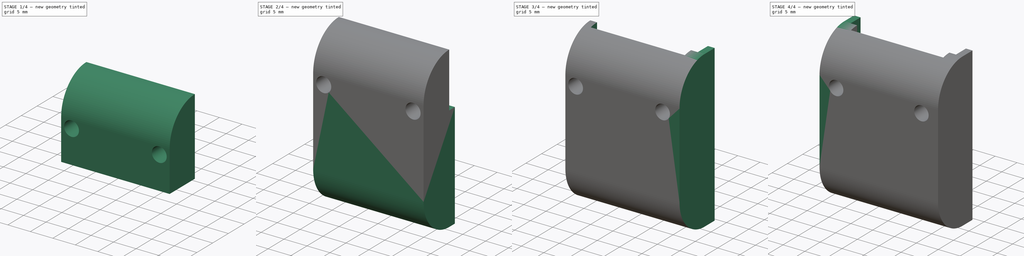
[diagram: build sequence overview — one tinted view per stage of 4, left to right]
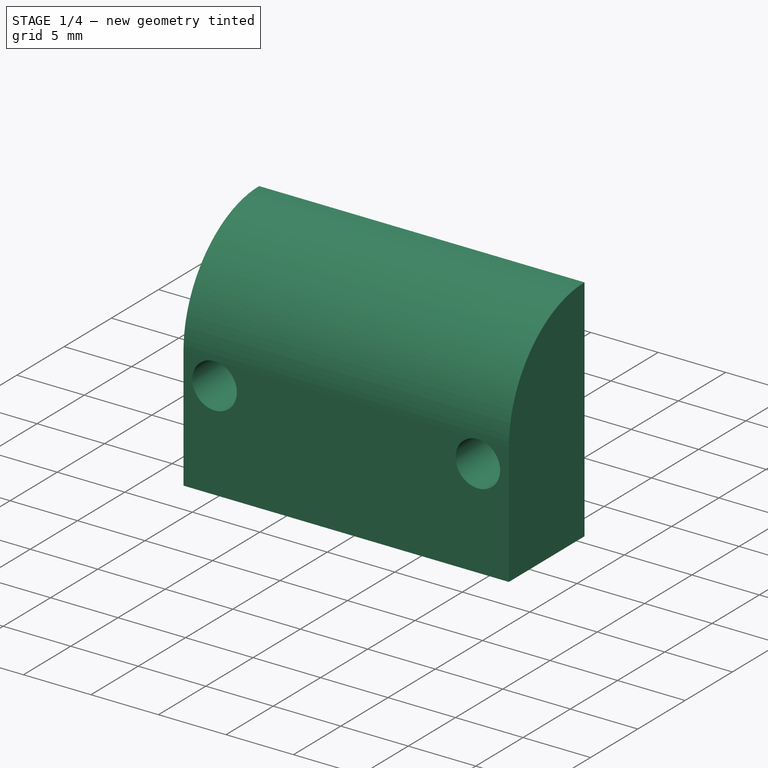
[diagram: stage 1 of 4 — iso view after this stage's code; geometry added in this stage tinted green]
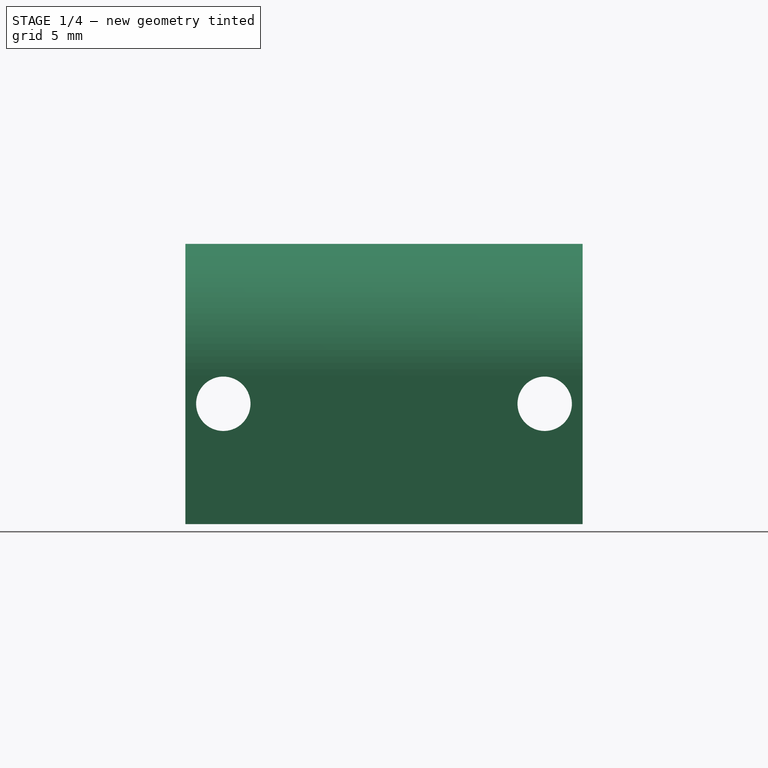
[diagram: stage 1 of 4 — front view after this stage's code; geometry added in this stage tinted green]
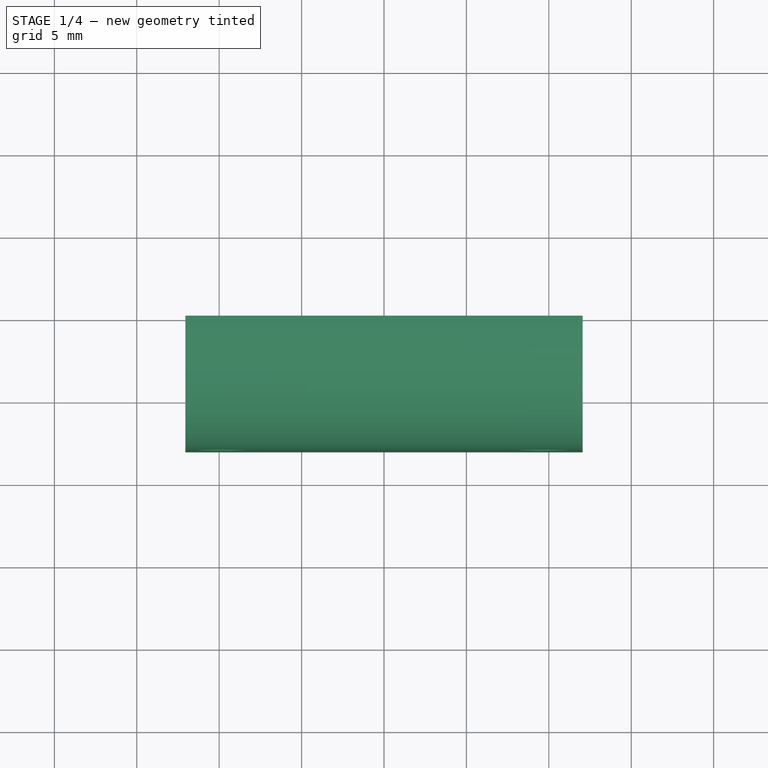
[diagram: stage 1 of 4 — top view after this stage's code; geometry added in this stage tinted green]
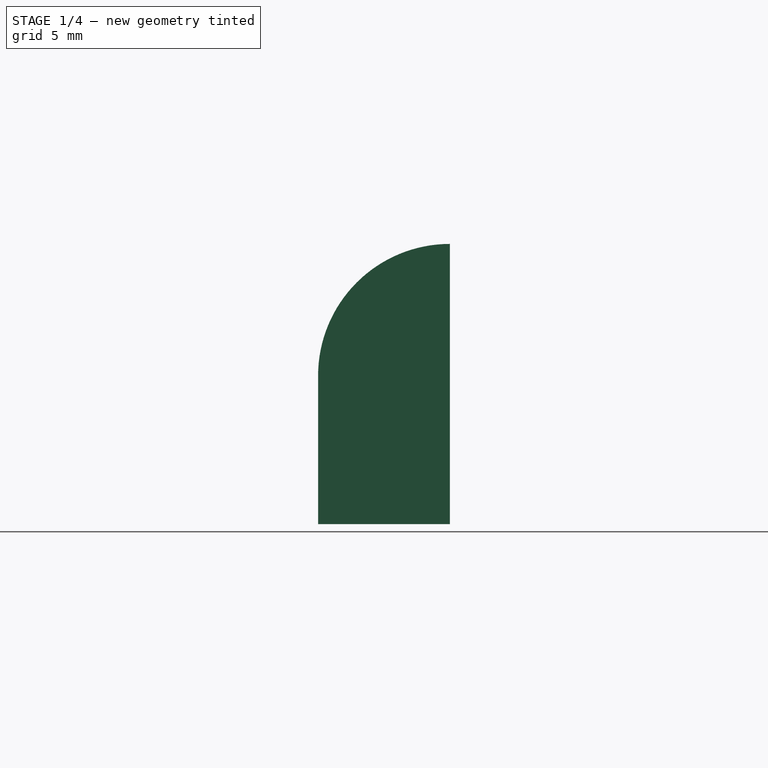
[diagram: stage 1 of 4 — right view after this stage's code; geometry added in this stage tinted green]
FCSTD DOCUMENT  (FreeCAD 1.0R39109 (Git))
Label: touch_sensor_prot
License: All rights reserved
LicenseURL: https://en.wikipedia.org/wiki/All_rights_reserved
objects: Sketcher::SketchObject×10, PartDesign::Pad×5, PartDesign::Pocket×4, PartDesign::Mirrored×1, PartDesign::Fillet×1, PartDesign::Body×1
note: 53 computed .brp shape members not serialized (recipe doc carries the construction recipe); baked Part::Feature solids carry a one-line shape summary decoded from their .brp

FEATURE [Sketcher::SketchObject] Sketch
  ArcFitTolerance = 1e-06
  AttachmentSupport = -> [XZ_Plane]
  FullyConstrained = true
  MakeInternals = false
  MapMode = 5
  Placement = pos=(0,0,0) rot=(1,0,0;1.5708rad)
  sketch-geometry (10):
    g0: LineSegment StartX=-12.05 StartY=6 StartZ=0 EndX=-12.05 EndY=-6 EndZ=0
    g1: LineSegment [constr] StartX=-12.05 StartY=-6 StartZ=0 EndX=12.05 EndY=-6 EndZ=0
    g2: LineSegment StartX=12.05 StartY=-6 StartZ=0 EndX=12.05 EndY=6 EndZ=0
    g3: LineSegment StartX=12.05 StartY=6 StartZ=0 EndX=-12.05 EndY=6 EndZ=0
    g4: GeomPoint [constr] X=0 Y=0 Z=0
    g5: LineSegment StartX=-12.05 StartY=-6 StartZ=0 EndX=-12.05 EndY=-11 EndZ=0
    g6: LineSegment StartX=-12.05 StartY=-11 StartZ=0 EndX=12.05 EndY=-11 EndZ=0
    g7: LineSegment StartX=12.05 StartY=-11 StartZ=0 EndX=12.05 EndY=-6 EndZ=0
    g8: Circle CenterX=-9.75 CenterY=-3.7 CenterZ=0 NormalX=0 NormalY=0 NormalZ=1 AngleXU=0 Radius=1.65
    g9: Circle CenterX=9.75 CenterY=-3.7 CenterZ=0 NormalX=0 NormalY=0 NormalZ=1 AngleXU=0 Radius=1.65
  constraints (25):
    c: Coincident(g0,g1)
    c: Coincident(g1,g2)
    c: Coincident(g2,g3)
    c: Coincident(g3,g0)
    c: Vertical(g0)
    c: Vertical(g2)
    c: Horizontal(g1)
    c: Horizontal(g3)
    c: Symmetric(g2,g0,g4)
    c: Coincident(g4,g-1)
    c: DistanceY(g0,g0) = 12
    c: DistanceX(g3,g3) = 24.1
    c: Coincident(g0,g5)
    c: Coincident(g5,g6)
    c: Horizontal(g6)
    c: Coincident(g6,g7)
    c: Coincident(g7,g1)
    c: Vertical(g7)
    c: Vertical(g5)
    c: DistanceY(g5,g5) = 5
    c: Symmetric(g9,g8,g-2)
    c: DistanceX(g8,g9) = 19.5
    c: DistanceY(g1,g9) = 2.3
    c: Equal(g9,g8)
    c: Radius(g8) = 1.65
FEATURE [PartDesign::Pad] Pad  label="BAsePad"
  Direction = (0,-1,2e-16)
  Length = 8
  Length2 = 10
  Placement = pos=(0,0,0) rot=(1,0,0;1.5708rad)
  Profile = -> Sketch
  ReferenceAxis = -> Sketch [N_Axis]
  Refine = true
  Suppressed = false
  Type = 0
FEATURE [Sketcher::SketchObject] Sketch001
  ArcFitTolerance = 1e-06
  AttachmentSupport = -> [Pad]
  FullyConstrained = true
  MakeInternals = false
  MapMode = 5
  Placement = pos=(0,-4.8e-15,-11) rot=(1,0,0;3.14159rad)
  sketch-geometry (4):
    g0: LineSegment StartX=-6 StartY=0 StartZ=0 EndX=-6 EndY=7 EndZ=0
    g1: LineSegment StartX=-6 StartY=7 StartZ=0 EndX=6 EndY=7 EndZ=0
    g2: LineSegment StartX=6 StartY=7 StartZ=0 EndX=6 EndY=0 EndZ=0
    g3: LineSegment StartX=6 StartY=0 StartZ=0 EndX=-6 EndY=0 EndZ=0
  constraints (11):
    c: PointOnObject(g0,g-1)
    c: Vertical(g0)
    c: Coincident(g0,g1)
    c: Coincident(g1,g2)
    c: PointOnObject(g2,g-1)
    c: Vertical(g2)
    c: Coincident(g2,g3)
    c: Coincident(g3,g0)
    c: Symmetric(g1,g0,g-2)
    c: DistanceY(g2,g2) = 7
    c: DistanceX(g0,g2) = 12
FEATURE [PartDesign::Pocket] Pocket  label="ScrewPocket"
  BaseFeature = -> Pad
  Direction = (0,0,1)
  Length = 10
  Length2 = 5
  Placement = pos=(0,0,0) rot=(1,0,0;1.5708rad)
  Profile = -> Sketch001
  ReferenceAxis = -> Sketch001 [N_Axis]
  Refine = true
  Suppressed = false
  Type = 0
FEATURE [Sketcher::SketchObject] Sketch002
  ArcFitTolerance = 1e-06
  AttachmentSupport = -> [Pocket]
  ExternalGeometry = -> [Pocket]
  FullyConstrained = true
  MakeInternals = false
  MapMode = 5
  Placement = pos=(0,-6e-16,0) rot=(-1,0,0;1.5708rad)
  sketch-geometry (4):
    g0: LineSegment StartX=-12.05 StartY=-6 StartZ=0 EndX=12.05 EndY=-6 EndZ=0
    g1: LineSegment StartX=12.05 StartY=-6 StartZ=0 EndX=12.05 EndY=-1 EndZ=0
    g2: LineSegment StartX=12.05 StartY=-1 StartZ=0 EndX=-12.05 EndY=-1 EndZ=0
    g3: LineSegment StartX=-12.05 StartY=-1 StartZ=0 EndX=-12.05 EndY=-6 EndZ=0
  constraints (10):
    c: Coincident(g0,g1)
    c: Coincident(g1,g2)
    c: Coincident(g2,g3)
    c: Coincident(g3,g0)
    c: Horizontal(g2)
    c: Vertical(g1)
    c: Vertical(g3)
    c: Coincident(g0,g-3)
    c: Coincident(g-3,g0)
    c: DistanceY(g1,g1) = 5
FEATURE [Sketcher::SketchObject] Sketch003
  ArcFitTolerance = 1e-06
  AttachmentSupport = -> [Pocket]
  ExternalGeometry = -> [Pocket]
  FullyConstrained = false
  MakeInternals = false
  MapMode = 5
  Placement = pos=(-12.05,0,0) rot=(0.707107,0,-0.707107;3.14159rad)
  sketch-geometry (3):
    g0: ArcOfCircle CenterX=2 CenterY=1.4e-15 CenterZ=0 NormalX=0 NormalY=0 NormalZ=1 AngleXU=0 Radius=8 StartAngle=1.5708 EndAngle=3.14159
    g1: LineSegment StartX=-6 StartY=-1.2e-15 StartZ=0 EndX=-6 EndY=8 EndZ=0
    g2: LineSegment StartX=-6 StartY=8 StartZ=0 EndX=2 EndY=8 EndZ=0
  constraints (6):
    c: Tangent(g0,g-3) = 1.5708
    c: Coincident(g0,g1)
    c: Coincident(g1,g2)
    c: Coincident(g2,g0)
    c: Horizontal(g2)
    c: Tangent(g0,g-4) = 1.5708
FEATURE [PartDesign::Pocket] Pocket001  label="CurvePocket"
  BaseFeature = -> Pocket
  Direction = (1,0,2e-16)
  Length = 5
  Length2 = 5
  Placement = pos=(0,0,0) rot=(1,0,0;1.5708rad)
  Profile = -> Sketch003
  ReferenceAxis = -> Sketch003 [N_Axis]
  Refine = true
  Suppressed = false
  Type = 1
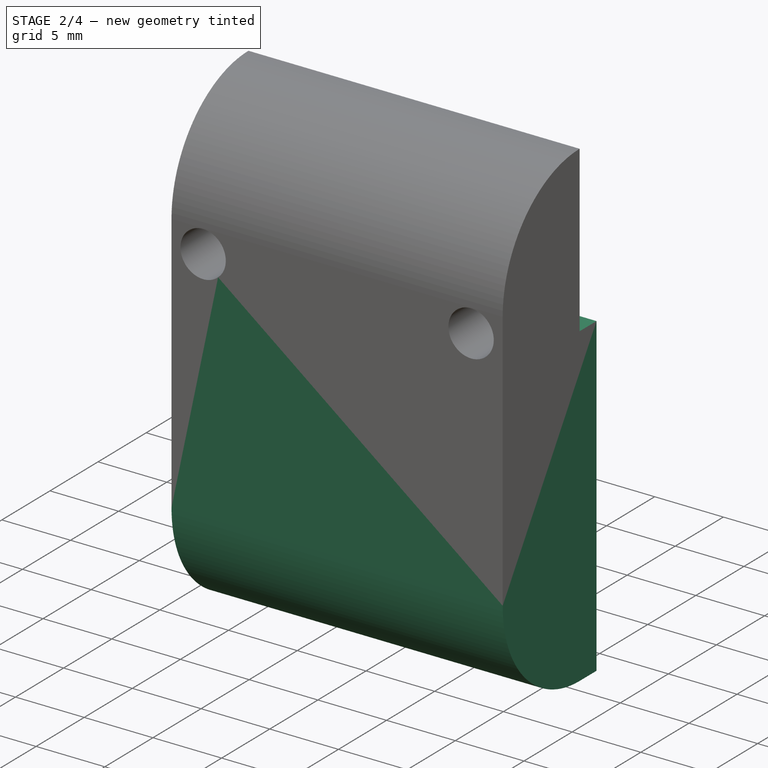
[diagram: stage 2 of 4 — iso view after this stage's code; geometry added in this stage tinted green]
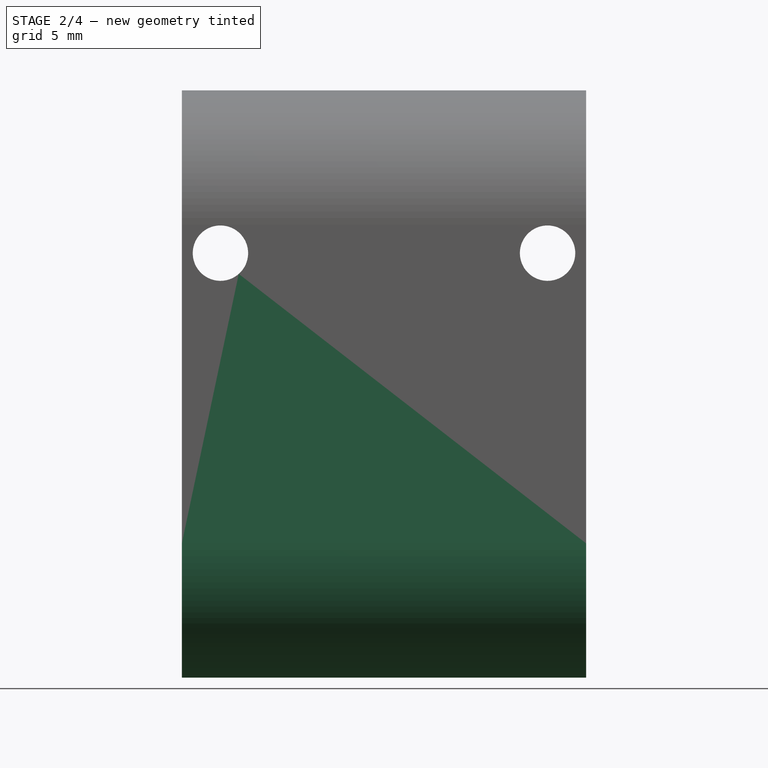
[diagram: stage 2 of 4 — front view after this stage's code; geometry added in this stage tinted green]
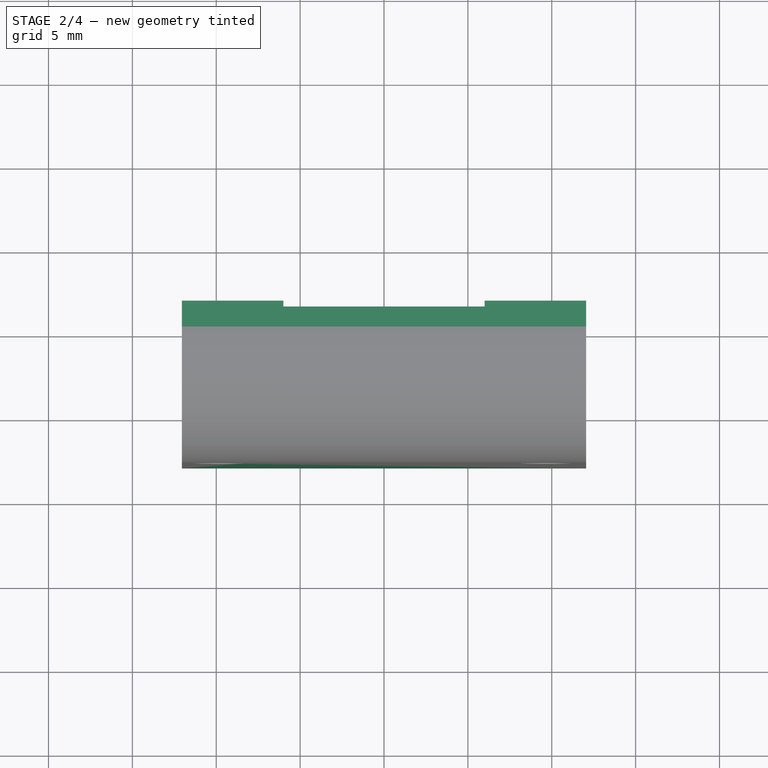
[diagram: stage 2 of 4 — top view after this stage's code; geometry added in this stage tinted green]
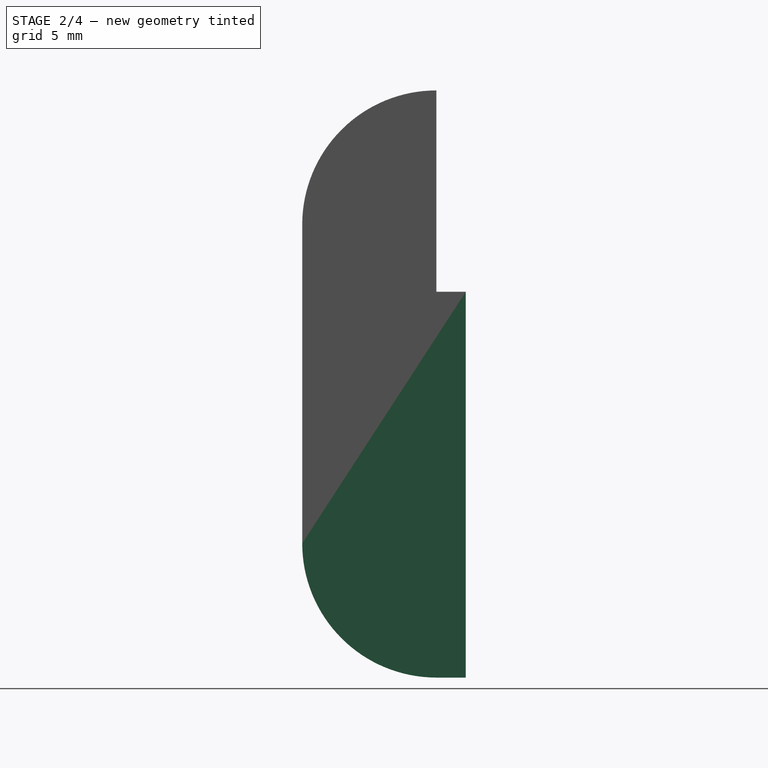
[diagram: stage 2 of 4 — right view after this stage's code; geometry added in this stage tinted green]
FEATURE [Sketcher::SketchObject] Sketch004
  ArcFitTolerance = 1e-06
  AttachmentSupport = -> [Pocket001]
  ExternalGeometry = -> [Pocket001]
  FullyConstrained = true
  MakeInternals = false
  MapMode = 5
  Placement = pos=(-12.05,0,0) rot=(0.707107,0,-0.707107;3.14159rad)
  sketch-geometry (4):
    g0: LineSegment StartX=11 StartY=8 StartZ=0 EndX=21 EndY=8 EndZ=0
    g1: ArcOfCircle CenterX=21 CenterY=0 CenterZ=0 NormalX=0 NormalY=0 NormalZ=1 AngleXU=0 Radius=8 StartAngle=0 EndAngle=1.5708
    g2: LineSegment StartX=29 StartY=0 StartZ=0 EndX=11 EndY=2.7e-15 EndZ=0
    g3: LineSegment StartX=11 StartY=2.7e-15 StartZ=0 EndX=11 EndY=8 EndZ=0
  constraints (10):
    c: Coincident(g-3,g0)
    c: Horizontal(g0)
    c: Tangent(g0,g1) = 1.5708
    c: Coincident(g1,g2)
    c: DistanceX(g0,g0) = 10
    c: PointOnObject(g1,g-1)
    c: Coincident(g2,g-3)
    c: Coincident(g2,g3)
    c: Coincident(g3,g0)
    c: PointOnObject(g1,g-1)
FEATURE [PartDesign::Pad] Pad001  label="ExtensionPad"
  BaseFeature = -> Pocket001
  Direction = (-1,0,-2e-16)
  Length = 10
  Length2 = 10
  Placement = pos=(0,0,0) rot=(1,0,0;1.5708rad)
  Profile = -> Sketch004
  ReferenceAxis = -> Sketch004 [N_Axis]
  Refine = true
  Reversed = true
  Suppressed = false
  Type = 3
  UpToFace = -> Pocket001 [Face6]
FEATURE [Sketcher::SketchObject] Sketch005
  ArcFitTolerance = 1e-06
  AttachmentSupport = -> [Pad001]
  ExternalGeometry = -> [Pad001]
  FullyConstrained = true
  MakeInternals = false
  MapMode = 5
  Placement = pos=(-6,0,0) rot=(0.707107,0,0.707107;3.14159rad)
  sketch-geometry (4):
    g0: LineSegment StartX=-11 StartY=7 StartZ=0 EndX=-19 EndY=7 EndZ=0
    g1: ArcOfCircle CenterX=-19 CenterY=0 CenterZ=0 NormalX=0 NormalY=0 NormalZ=1 AngleXU=0 Radius=7 StartAngle=1.5708 EndAngle=3.14159
    g2: LineSegment StartX=-26 StartY=0 StartZ=0 EndX=-11 EndY=0 EndZ=0
    g3: LineSegment StartX=-11 StartY=0 StartZ=0 EndX=-11 EndY=7 EndZ=0
  constraints (11):
    c: Coincident(g-3,g0)
    c: Horizontal(g0)
    c: Tangent(g0,g1) = -1.5708
    c: PointOnObject(g1,g-1)
    c: Coincident(g1,g2)
    c: Coincident(g2,g3)
    c: Coincident(g3,g0)
    c: Vertical(g3)
    c: Horizontal(g2)
    c: DistanceX(g0,g0) = 8
    c: Horizontal(g1,g1)
FEATURE [PartDesign::Pocket] Pocket002  label="EmptyPocket"
  BaseFeature = -> Pad001
  Direction = (-1,0,2e-16)
  Length = 12
  Length2 = 5
  Placement = pos=(0,0,0) rot=(1,0,0;1.5708rad)
  Profile = -> Sketch005
  ReferenceAxis = -> Sketch005 [N_Axis]
  Refine = true
  Reversed = true
  Suppressed = false
  Type = 0
FEATURE [Sketcher::SketchObject] Sketch006
  ArcFitTolerance = 1e-06
  AttachmentSupport = -> [Pocket002]
  ExternalGeometry = -> [Pocket002]
  FullyConstrained = true
  MakeInternals = false
  MapMode = 5
  Placement = pos=(0,1e-16,0) rot=(-1,0,0;1.5708rad)
  sketch-geometry (8):
    g0: LineSegment StartX=-12.05 StartY=6 StartZ=0 EndX=-12.05 EndY=29 EndZ=0
    g1: LineSegment StartX=-12.05 StartY=29 StartZ=0 EndX=12.05 EndY=29 EndZ=0
    g2: LineSegment StartX=12.05 StartY=29 StartZ=0 EndX=12.05 EndY=6 EndZ=0
    g3: LineSegment StartX=12.05 StartY=6 StartZ=0 EndX=6 EndY=6 EndZ=0
    g4: LineSegment StartX=6 StartY=6 StartZ=0 EndX=6 EndY=26 EndZ=0
    g5: LineSegment StartX=6 StartY=26 StartZ=0 EndX=-6 EndY=26 EndZ=0
    g6: LineSegment StartX=-6 StartY=26 StartZ=0 EndX=-6 EndY=6 EndZ=0
    g7: LineSegment StartX=-6 StartY=6 StartZ=0 EndX=-12.05 EndY=6 EndZ=0
  constraints (20):
    c: PointOnObject(g0,g-5)
    c: Coincident(g0,g-7)
    c: Coincident(g0,g1)
    c: Coincident(g1,g-7)
    c: Coincident(g1,g2)
    c: PointOnObject(g2,g-6)
    c: Coincident(g2,g3)
    c: PointOnObject(g3,g-9)
    c: Horizontal(g3)
    c: Coincident(g3,g4)
    c: Coincident(g4,g-10)
    c: Coincident(g4,g5)
    c: Coincident(g5,g-10)
    c: Coincident(g5,g6)
    c: PointOnObject(g6,g-8)
    c: Coincident(g6,g7)
    c: Coincident(g7,g0)
    c: Horizontal(g7)
    c: Horizontal(g3,g6)
    c: DistanceY(g-4,g0) = 2.3
FEATURE [PartDesign::Pad] Pad002  label="LevelPad"
  BaseFeature = -> Pocket002
  Direction = (0,1,2e-16)
  Length = 1.75
  Length2 = 10
  Placement = pos=(0,0,0) rot=(1,0,0;1.5708rad)
  Profile = -> Sketch006
  ReferenceAxis = -> Sketch006 [N_Axis]
  Refine = true
  Suppressed = false
  Type = 0
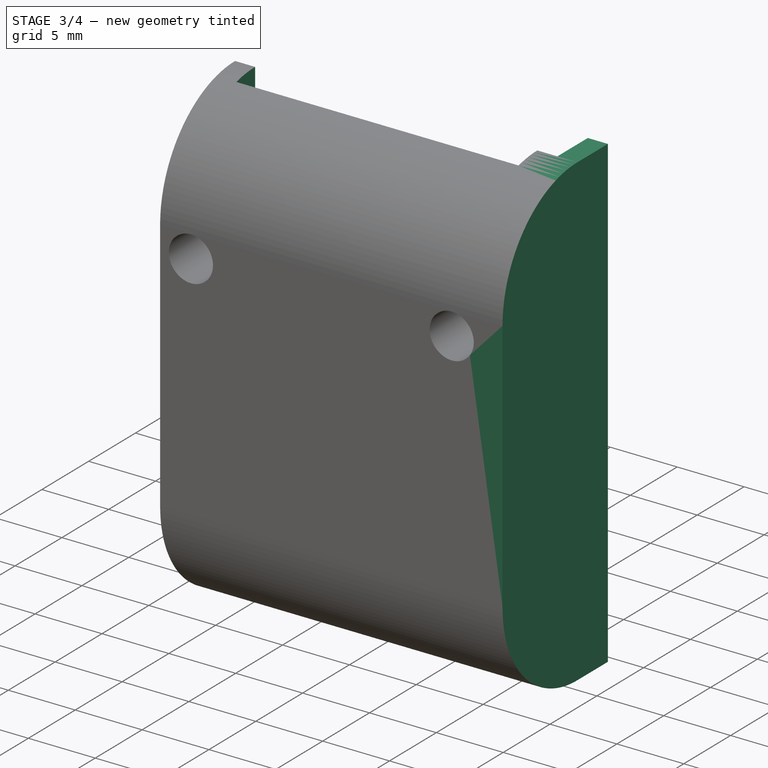
[diagram: stage 3 of 4 — iso view after this stage's code; geometry added in this stage tinted green]
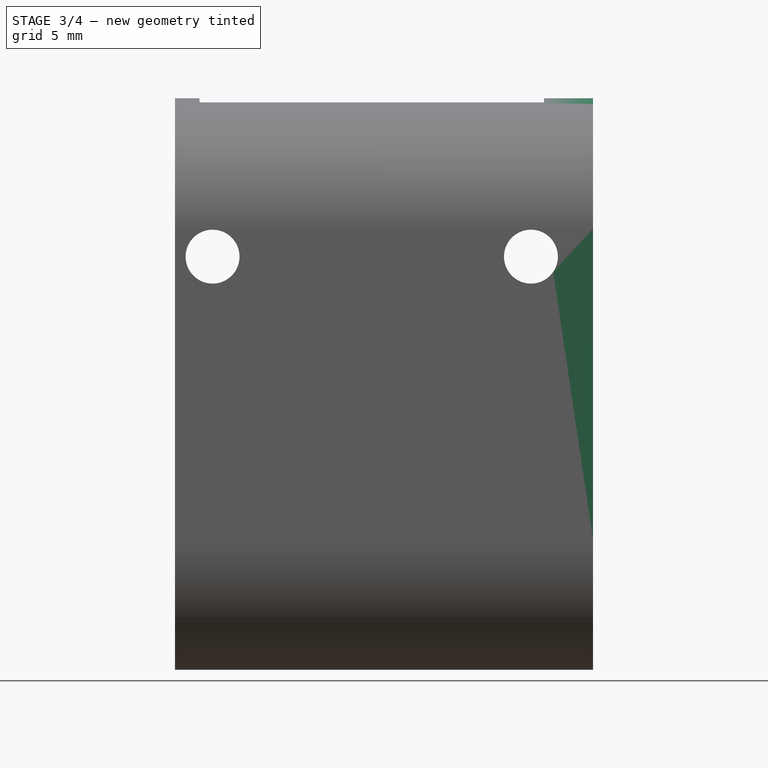
[diagram: stage 3 of 4 — front view after this stage's code; geometry added in this stage tinted green]
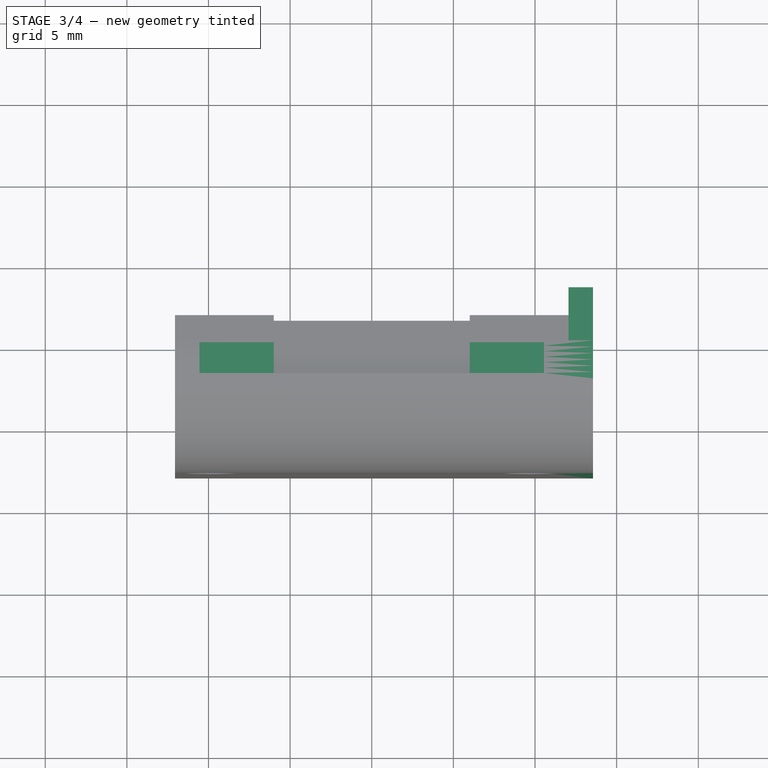
[diagram: stage 3 of 4 — top view after this stage's code; geometry added in this stage tinted green]
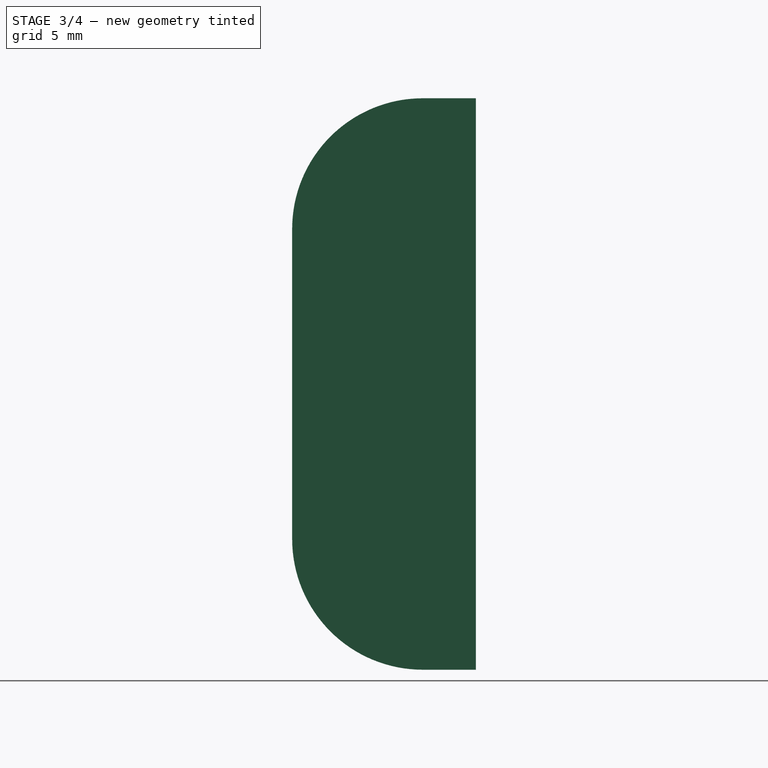
[diagram: stage 3 of 4 — right view after this stage's code; geometry added in this stage tinted green]
FEATURE [Sketcher::SketchObject] Sketch007
  ArcFitTolerance = 1e-06
  AttachmentSupport = -> [Pad002]
  ExternalGeometry = -> [Pad002,Sketch002]
  FullyConstrained = true
  MakeInternals = false
  MapMode = 5
  Placement = pos=(0,1e-16,0) rot=(-1,0,0;1.5708rad)
  sketch-geometry (6):
    g0: LineSegment StartX=-6 StartY=1 StartZ=0 EndX=-10.55 EndY=0.999989 EndZ=0
    g1: LineSegment StartX=-10.55 StartY=0.999989 StartZ=0 EndX=-10.55 EndY=-6 EndZ=0
    g2: LineSegment StartX=-10.55 StartY=-6 StartZ=0 EndX=10.55 EndY=-6 EndZ=0
    g3: LineSegment StartX=10.55 StartY=-6 StartZ=0 EndX=10.55 EndY=1 EndZ=0
    g4: LineSegment StartX=10.55 StartY=1 StartZ=0 EndX=6 EndY=1 EndZ=0
    g5: LineSegment StartX=-6 StartY=1 StartZ=0 EndX=6 EndY=1 EndZ=0
  constraints (15):
    c: Coincident(g-3,g0)
    c: Coincident(g0,g1)
    c: Vertical(g1)
    c: Coincident(g1,g2)
    c: Coincident(g2,g3)
    c: Coincident(g3,g4)
    c: Coincident(g4,g-3)
    c: Vertical(g3)
    c: Symmetric(g2,g1,g-2)
    c: Equal(g4,g0)
    c: DistanceX(g-4,g1) = 1.5
    c: Horizontal(g4)
    c: Coincident(g5,g0)
    c: Coincident(g5,g4)
    c: Horizontal(g1,g-4)
FEATURE [PartDesign::Pocket] Pocket003  label="AdditionalSpacePocket"
  BaseFeature = -> Pad002
  Direction = (0,-1,-2e-16)
  Length = 2
  Length2 = 5
  Placement = pos=(0,0,0) rot=(1,0,0;1.5708rad)
  Profile = -> Sketch007
  ReferenceAxis = -> Sketch007 [N_Axis]
  Refine = true
  Suppressed = false
  Type = 0
FEATURE [Sketcher::SketchObject] Sketch008
  ArcFitTolerance = 1e-06
  AttachmentSupport = -> [Pocket003]
  ExternalGeometry = -> [Pocket003]
  FullyConstrained = true
  MakeInternals = false
  MapMode = 5
  Placement = pos=(12.05,5.4e-15,-3.1e-15) rot=(0.707107,0,0.707107;3.14159rad)
  sketch-geometry (6):
    g0: LineSegment StartX=-29 StartY=1.08e-14 StartZ=0 EndX=-29 EndY=-3.25 EndZ=0
    g1: LineSegment StartX=-29 StartY=-3.25 StartZ=0 EndX=6 EndY=-3.25 EndZ=0
    g2: LineSegment StartX=6 StartY=-3.25 StartZ=0 EndX=6 EndY=-4e-16 EndZ=0
    g3: ArcOfCircle CenterX=-2 CenterY=-4.75e-14 CenterZ=0 NormalX=0 NormalY=0 NormalZ=1 AngleXU=0 Radius=8 StartAngle=5.9e-15 EndAngle=1.5708
    g4: LineSegment StartX=-2 StartY=8 StartZ=0 EndX=-21 EndY=8 EndZ=0
    g5: ArcOfCircle CenterX=-21 CenterY=6.31e-14 CenterZ=0 NormalX=0 NormalY=0 NormalZ=1 AngleXU=0 Radius=8 StartAngle=1.5708 EndAngle=3.14159
  constraints (13):
    c: Vertical(g0)
    c: Coincident(g0,g1)
    c: Horizontal(g1)
    c: Coincident(g1,g2)
    c: Coincident(g2,g-5)
    c: Tangent(g2,g3) = -1.5708
    c: Coincident(g4,g-4)
    c: Tangent(g4,g5) = -1.5708
    c: Coincident(g5,g0)
    c: Tangent(g3,g4) = -1.5708
    c: Coincident(g3,g-5)
    c: Coincident(g0,g-3)
    c: DistanceY(g0,g-6) = 1.5
FEATURE [PartDesign::Pad] Pad003  label="LateralPad"
  BaseFeature = -> Pocket003
  Direction = (1,0,-2e-16)
  Length = 1.5
  Length2 = 10
  Placement = pos=(0,0,0) rot=(1,0,0;1.5708rad)
  Profile = -> Sketch008
  ReferenceAxis = -> Sketch008 [N_Axis]
  Refine = true
  Suppressed = false
  Type = 0
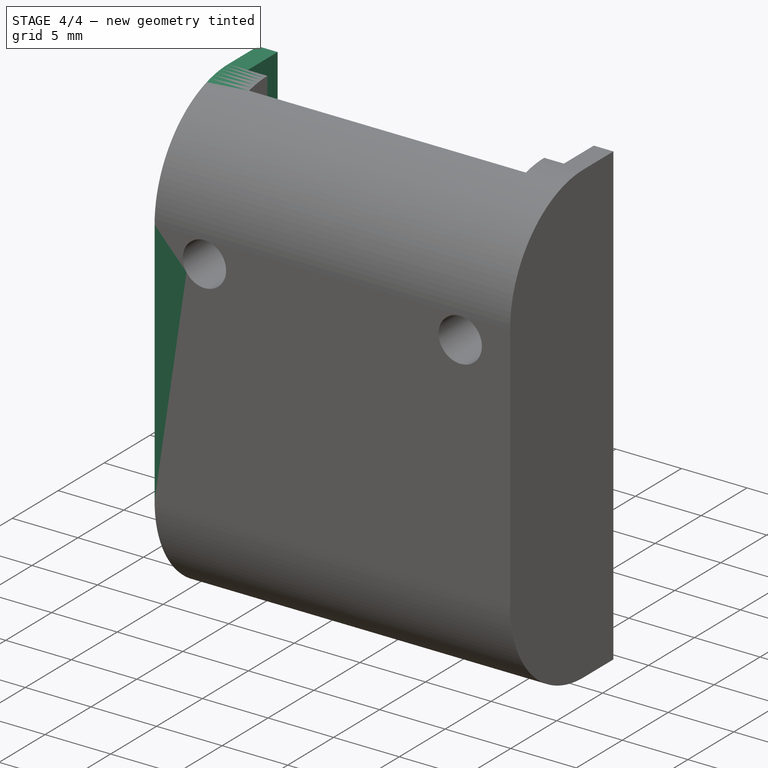
[diagram: stage 4 of 4 — iso view after this stage's code; geometry added in this stage tinted green]
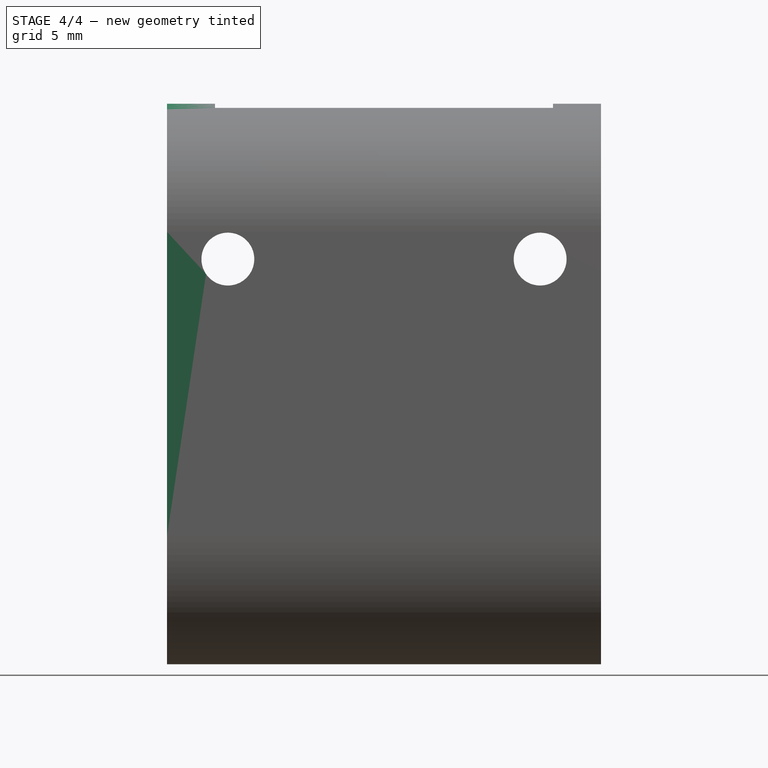
[diagram: stage 4 of 4 — front view after this stage's code; geometry added in this stage tinted green]
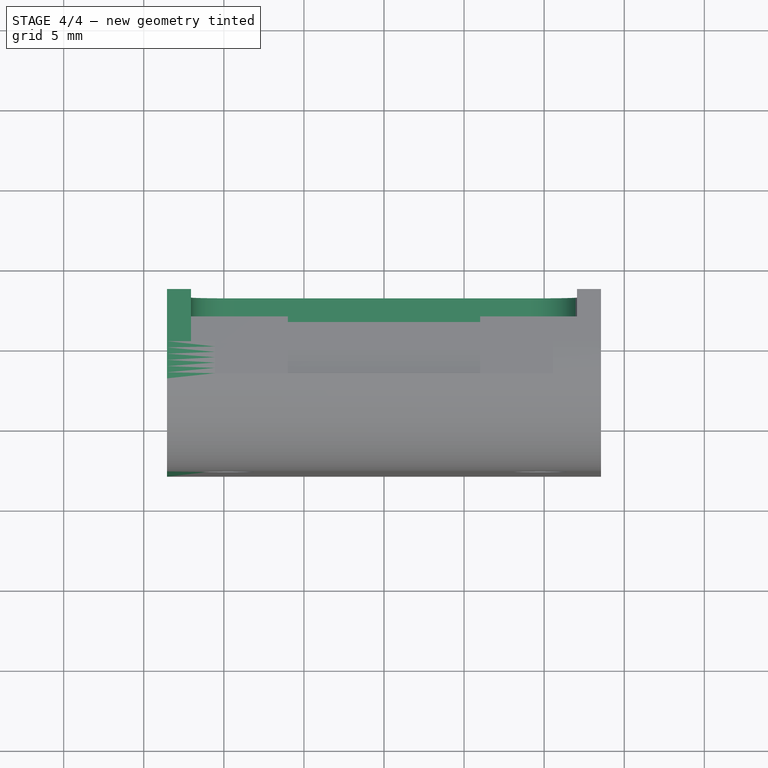
[diagram: stage 4 of 4 — top view after this stage's code; geometry added in this stage tinted green]
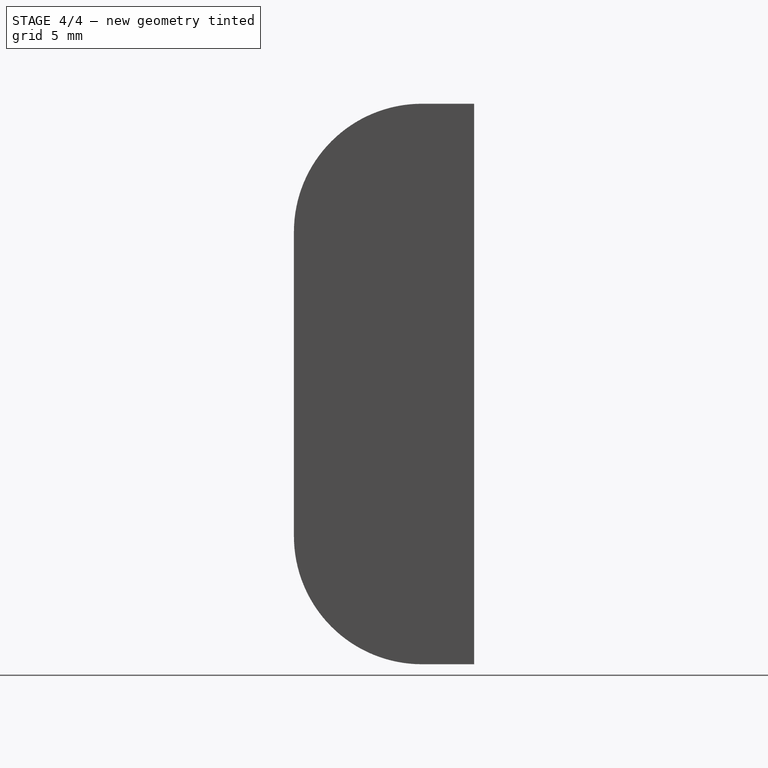
[diagram: stage 4 of 4 — right view after this stage's code; geometry added in this stage tinted green]
FEATURE [PartDesign::Mirrored] Mirrored  label="LateralPadMirror"
  BaseFeature = -> Pad003
  MirrorPlane = -> YZ_Plane
  Originals = -> [Pad003]
  Placement = pos=(0,0,0) rot=(1,0,0;1.5708rad)
  Refine = true
  Suppressed = false
  TransformMode = 0
FEATURE [Sketcher::SketchObject] Sketch009
  ArcFitTolerance = 1e-06
  AttachmentSupport = -> [Mirrored]
  ExternalGeometry = -> [Mirrored]
  FullyConstrained = true
  MakeInternals = false
  MapMode = 5
  Placement = pos=(0,1.75,0) rot=(-1,0,0;1.5708rad)
  sketch-geometry (4):
    g0: LineSegment StartX=-12.05 StartY=29 StartZ=0 EndX=-12.05 EndY=27.5 EndZ=0
    g1: LineSegment StartX=-12.05 StartY=27.5 StartZ=0 EndX=12.05 EndY=27.5 EndZ=0
    g2: LineSegment StartX=12.05 StartY=27.5 StartZ=0 EndX=12.05 EndY=29 EndZ=0
    g3: LineSegment StartX=12.05 StartY=29 StartZ=0 EndX=-12.05 EndY=29 EndZ=0
  constraints (11):
    c: Coincident(g0,g1)
    c: Coincident(g1,g2)
    c: Coincident(g2,g3)
    c: Coincident(g3,g0)
    c: Vertical(g0)
    c: Vertical(g2)
    c: Horizontal(g1)
    c: Horizontal(g3)
    c: Coincident(g0,g-3)
    c: Vertical(g-4,g1)
    c: DistanceY(g2,g2) = 1.5
FEATURE [PartDesign::Pad] Pad004  label="DownPad"
  BaseFeature = -> Mirrored
  Direction = (0,1,2e-16)
  Length = 1.5
  Length2 = 10
  Placement = pos=(0,0,0) rot=(1,0,0;1.5708rad)
  Profile = -> Sketch009
  ReferenceAxis = -> Sketch009 [N_Axis]
  Refine = true
  Suppressed = false
  Type = 0
FEATURE [PartDesign::Fillet] Fillet  label="ReinforcementFillet"
  Base = -> Pad004 [Edge72,Edge32]
  BaseFeature = -> Pad004
  Placement = pos=(0,0,0) rot=(1,0,0;1.5708rad)
  Radius = 3
  Refine = true
  SupportTransform = false
  Suppressed = false
  UseAllEdges = false
FEATURE [PartDesign::Body] Body  label="touch_sensor_prot"
  AllowCompound = false
  Group = -> [Sketch,Pad,Sketch001,Pocket,Sketch002,Sketch003,Pocket001,Sketch004,Pad001,Sketch005,Pocket002,Sketch006,Pad002,Sketch007,Pocket003,Sketch008,Pad003,Mirrored,Sketch009,Pad004,Fillet]
  Origin = -> Origin
  Tip = -> Fillet
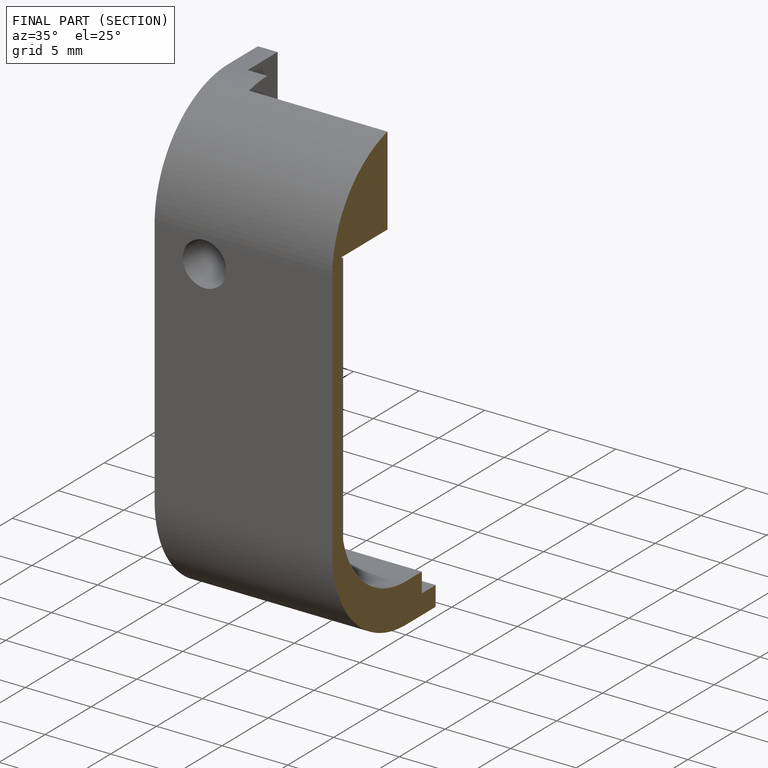
[diagram: finished part — half-section view (interior)]
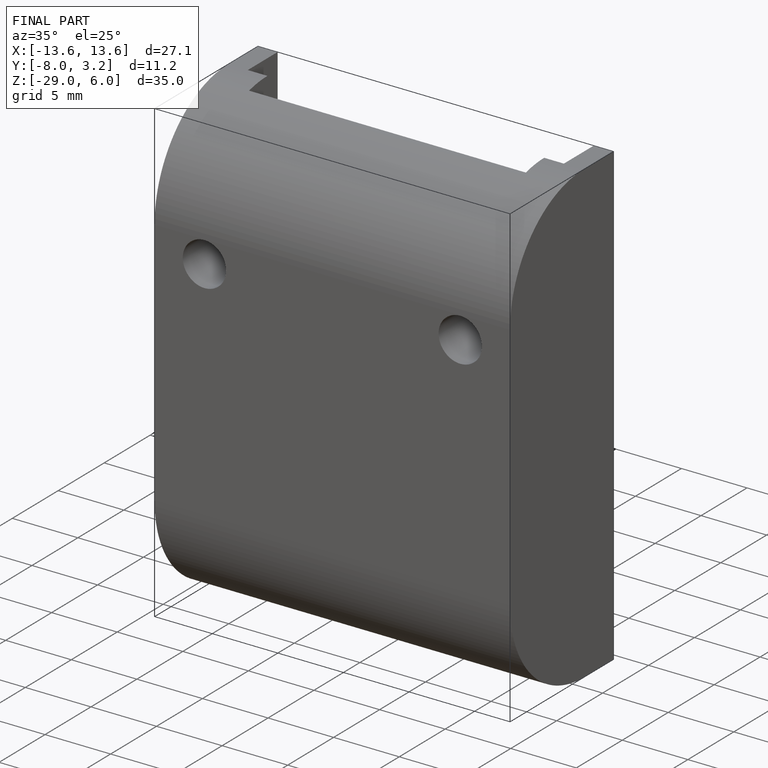
[diagram: finished part — iso view with bounding-box wireframe]
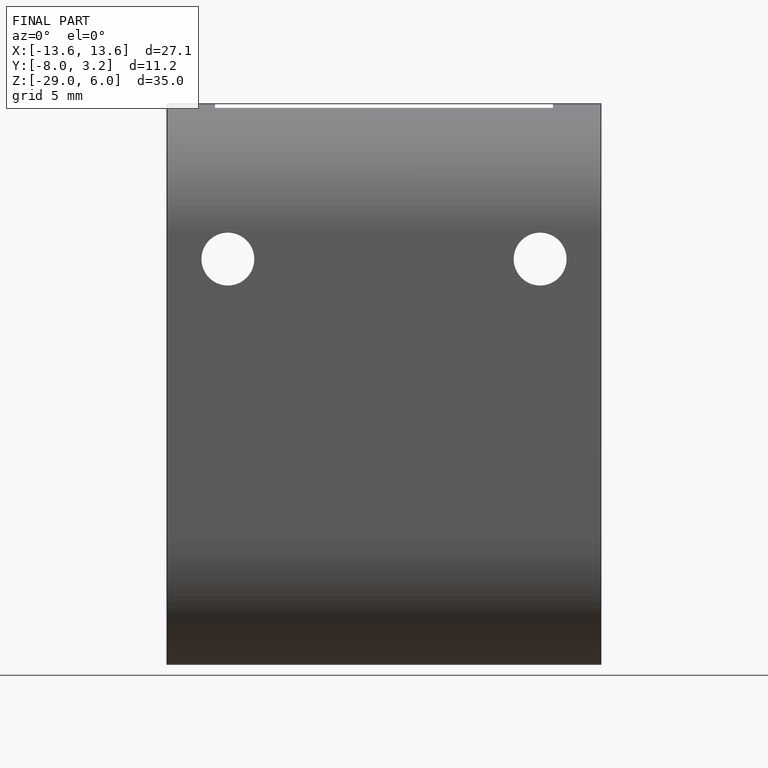
[diagram: finished part — front view with bounding-box wireframe]
